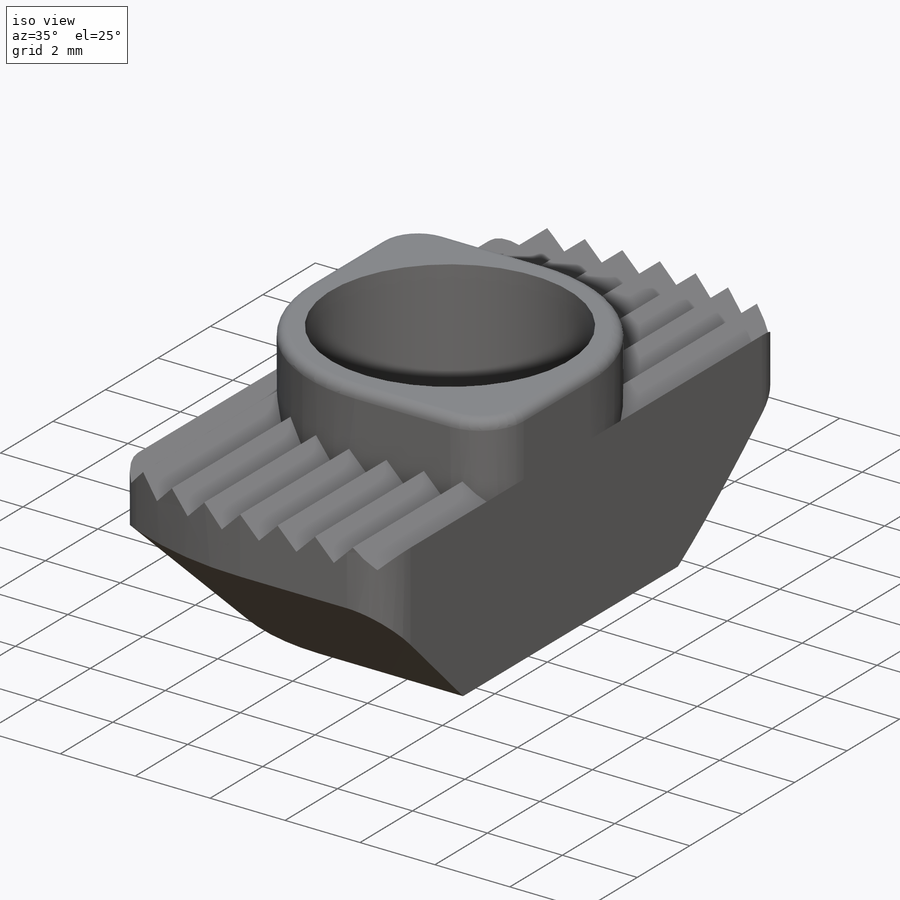
[diagram: iso view]
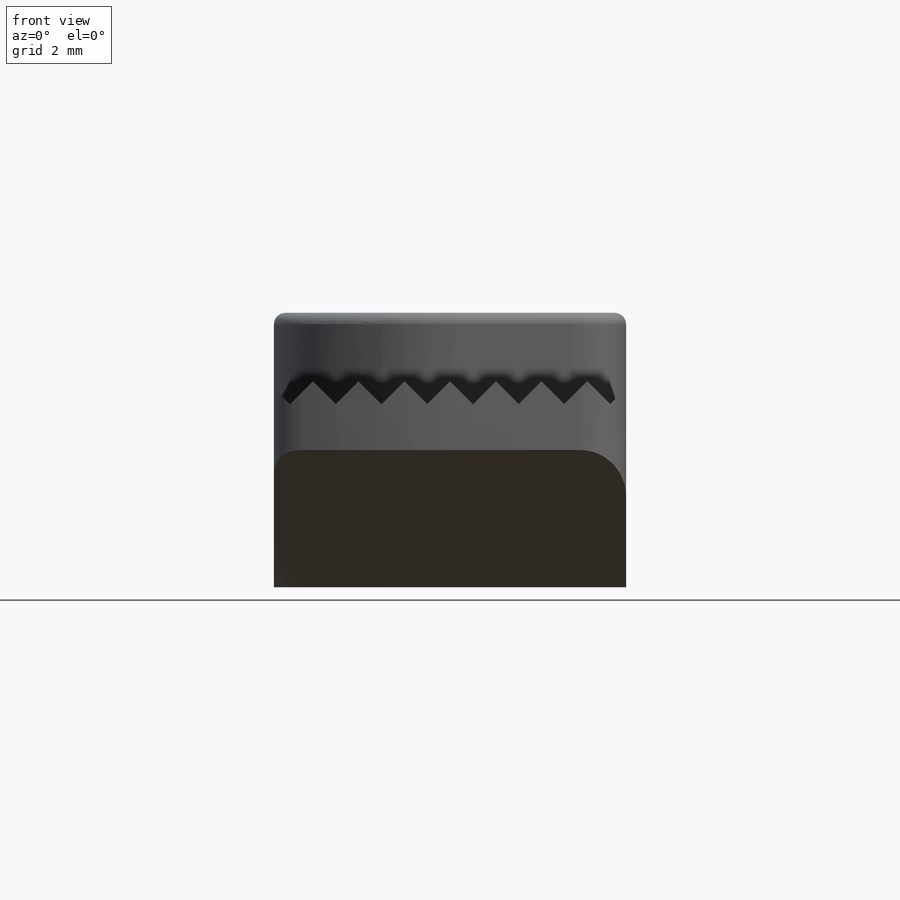
[diagram: front view]
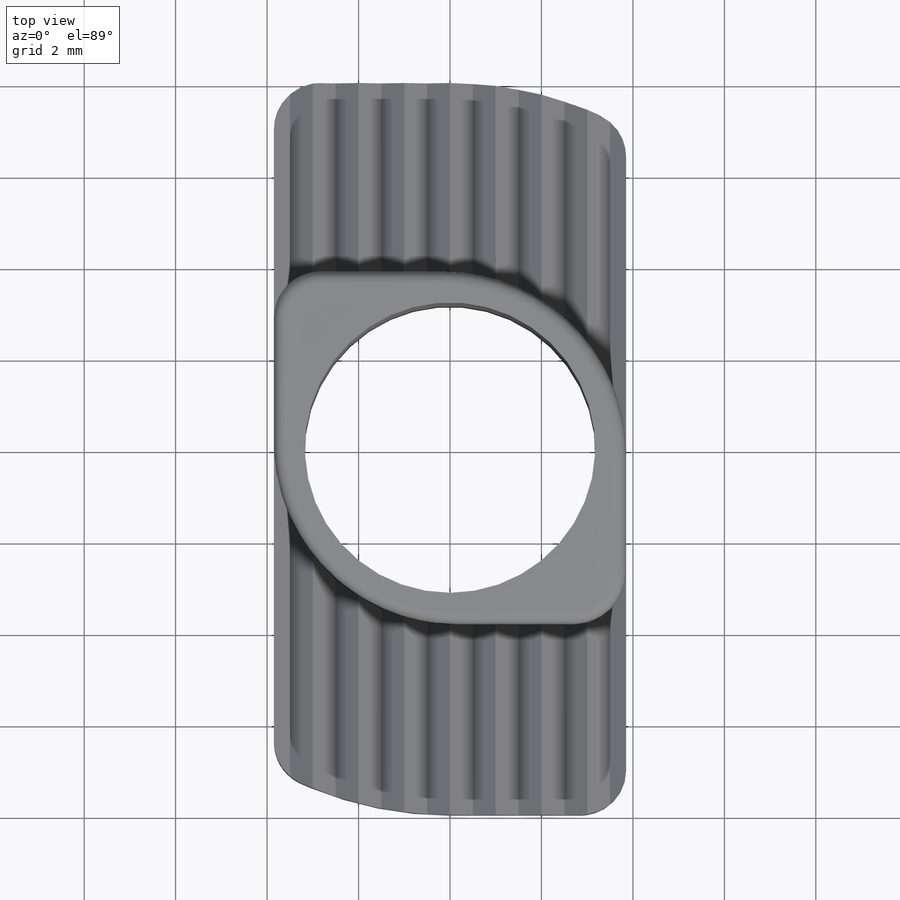
[diagram: top view]
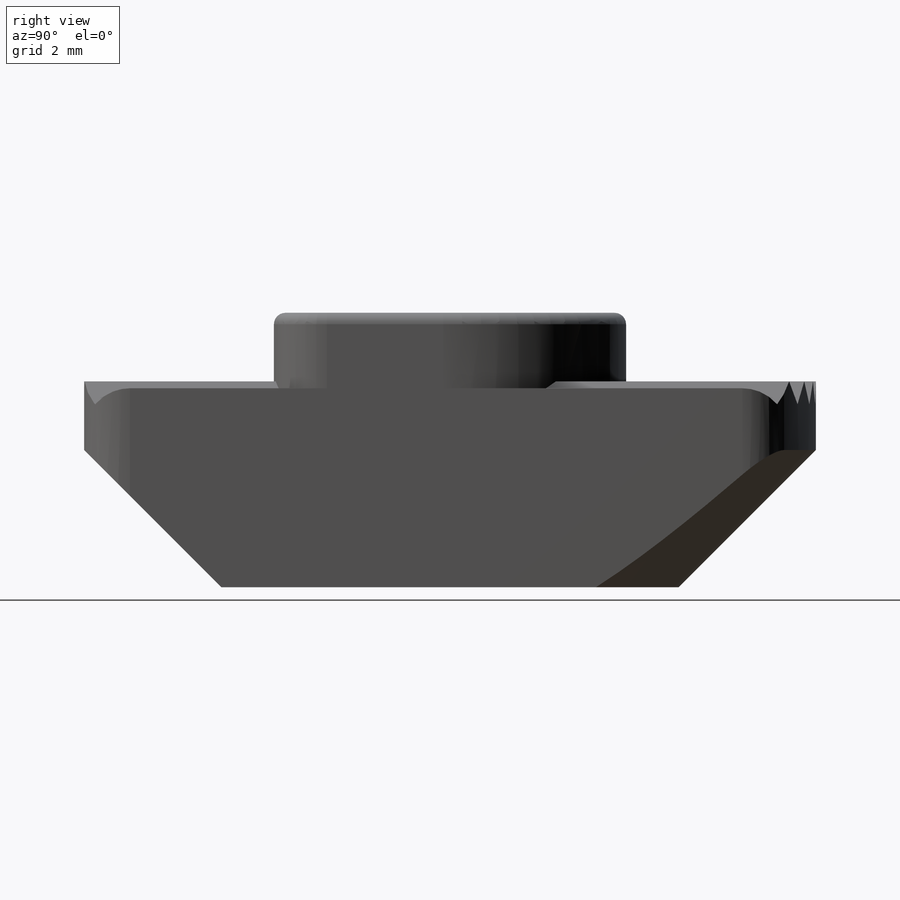
[diagram: right view]
SOLIDWORKS PART (.sldprt)
format: sldprt  version: not decoded by parser v0  size: 313,344 bytes
history: native  units: mm
features: sketch x9, cut_extrude x4, extrude x3, cut_revolve x2, material x1, fillet x1 (+12 scaffold rows collapsed)
feature tree (32):
  scaffold x12  (default folders/planes/origin — collapsed)
  material  "AISI 1020"
  sketch  "Sketch1"
  extrude  "Extrude1"  Depth=4.5mm
  sketch  "Sketch2"
  cut_extrude  "Cut-Extrude1"  Depth=8mm
  sketch  "Sketch3"
  extrude  "Extrude2"  Depth=6.0004mm
  sketch  "Sketch4"
  cut_extrude  "Cut-Extrude2"  Depth=4mm
  sketch  "Sketch5"
  cut_revolve  "Cut-Revolve1"  Angle=60deg
  sketch  "Sketch6"
  cut_revolve  "Cut-Revolve2"  Angle=60deg
  sketch  "Sketch9"  dims[D1=~1.71086mm]
  cut_extrude  "Cut-Extrude3"  [1 undecoded]
  fillet  "Fillet4"  Radius=0.25mm
  sketch  "Sketch10"
  extrude  "Extrude3"  [1 undecoded]
  sketch  "Sketch12"  dims[D1=6.35mm]
  cut_extrude  "Cut-Extrude4"  [1 undecoded]
decode coverage: 9 of 19 modeling features carry decoded parameters
note: ~ marks probable driven/reference dimensions
note: 3 parameter values undecoded
summary: no parameter record found for 3 features
note: suppression state not decoded; provenance and decode notes live in map.json
